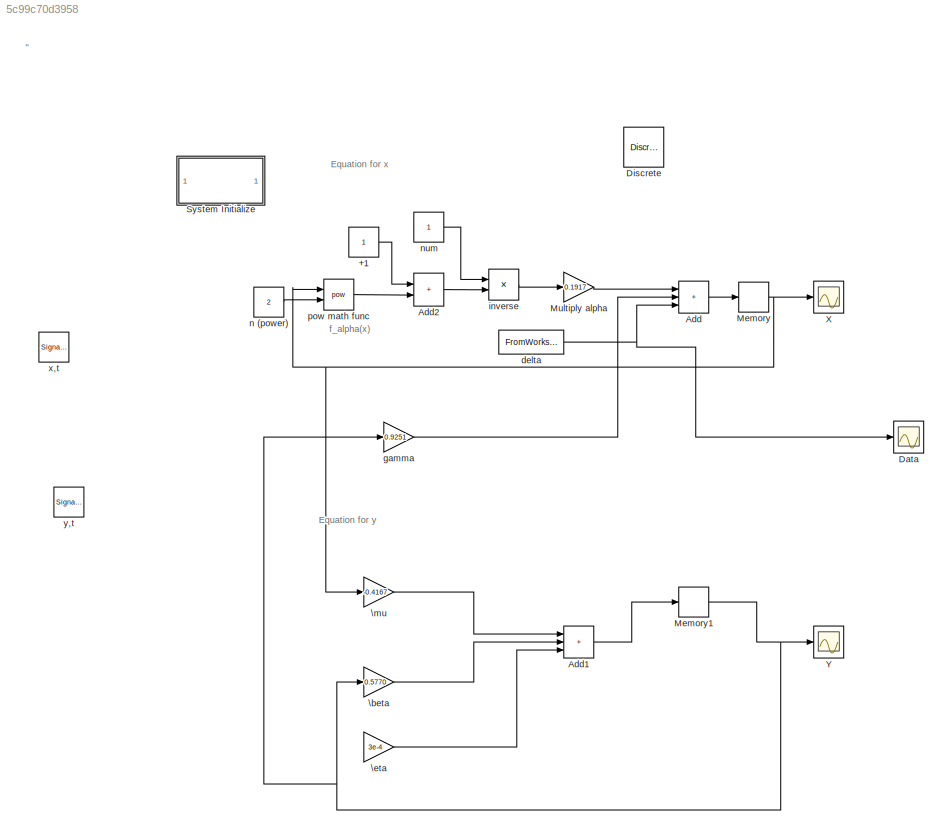
MODEL slx_5c99c70d3958
KIND model
CONFIG AbsTol = auto
CONFIG EnableMultiTasking = off
CONFIG FixedStep = auto
CONFIG MaxStep = auto
CONFIG MinStep = auto
CONFIG RelTol = 1e-3
CONFIG SampleTimeConstraint = Unconstrained
CONFIG SolverName = VariableStepAuto
CONFIG StartTime = 0.0
CONFIG StopTime = 1461
BLOCK [Constant] +1
BLOCK [Sum] Add
  IconShape = rectangular
  Inputs = +++
  Ports = [3, 1]
BLOCK [Sum] Add1
  IconShape = rectangular
  Inputs = +++
  Ports = [3, 1]
BLOCK [Sum] Add2
  IconShape = rectangular
  Ports = [2, 1]
BLOCK [Scope] Data
  Floating = off
  NumInputPorts = 1
  Ports = [1]
  ScopeSpecificationString = Simulink.scopes.TimeScopeBlockCfg('CurrentConfiguration', extmgr.ConfigurationSet(extmgr.Configuration('Core','General UI',true),extmgr.Configuration('Core','Source UI',true),extmgr.Configuration('Sources','WiredSimulink',true,'DataLoggingVariableName','ScopeData1'),extmgr.Configuration('Visuals','Time Domain',true,'SerializedDisplays',{struct('MinYLimReal','-2.42189','MaxYLimReal','10.48599','YLa...<+1401ch>
BLOCK [Reference] Discrete  REF=simulink/Discrete
  Ports = []
  SourceBlock = simulink/Discrete
  SourceProductBaseCode = SL
BLOCK [Memory] Memory
  InitialCondition = 1
BLOCK [Memory] Memory1
  InitialCondition = 1
BLOCK [Gain] Multiply alpha
  Gain = 0.1917
BLOCK [SubSystem] System Initialize
  CopyFcn = cccopyfcn(gcb)
  OpenFcn = ccopenfcn('System Initialize Function')
  Ports = []
  RequestExecContextInheritance = off
BLOCK [Scope] X
  Floating = off
  NumInputPorts = 1
  Ports = [1]
  ScopeSpecificationString = Simulink.scopes.TimeScopeBlockCfg('CurrentConfiguration', extmgr.ConfigurationSet(extmgr.Configuration('Core','General UI',true),extmgr.Configuration('Core','Source UI',true),extmgr.Configuration('Sources','WiredSimulink',true),extmgr.Configuration('Visuals','Time Domain',true,'SerializedDisplays',{struct('MinYLimReal','-1.68854','MaxYLimReal','7.62452','YLabelReal','','MinYLimMag','0.00000','MaxY...<+1359ch>
BLOCK [Scope] Y
  Floating = off
  NumInputPorts = 1
  Ports = [1]
  ScopeSpecificationString = Simulink.scopes.TimeScopeBlockCfg('CurrentConfiguration', extmgr.ConfigurationSet(extmgr.Configuration('Core','General UI',true),extmgr.Configuration('Core','Source UI',true),extmgr.Configuration('Sources','WiredSimulink',true,'DataLoggingVariableName','ScopeData1'),extmgr.Configuration('Visuals','Time Domain',true,'SerializedDisplays',{struct('MinYLimReal','-5.92719','MaxYLimReal','1.76969','YLab...<+1366ch>
BLOCK [Gain] \beta
  Gain = 0.5770
BLOCK [Gain] \eta
  Gain = 3e-4
BLOCK [Gain] \mu
  Gain = -0.4167
BLOCK [FromWorkspace] delta
  OutputAfterFinalValue = Holding final value
  SampleTime = 1
  VariableName = stl_data2
BLOCK [Gain] gamma
  Gain = 0.9251
BLOCK [Product] inverse
  Inputs = */
  Ports = [2, 1]
BLOCK [Constant] n (power)
  Value = 2
BLOCK [Constant] num
BLOCK [Math] pow math func
  Operator = pow
  Ports = [2, 1]
BLOCK [SignalGenerator] x,t
  Ports = [0, 1]
  Units = rad/sec
  WaveForm = random
BLOCK [SignalGenerator] y,t
  Ports = [0, 1]
  Units = rad/sec
  WaveForm = random
ANNOTATION (root): "
ANNOTATION (root): Equation for x
ANNOTATION (root): Equation for y
ANNOTATION (root): f_alpha(x)
LINE +1:1 -> Add2:1
LINE Add1:1 -> Memory1:1
LINE Add2:1 -> inverse:2
LINE Add:1 -> Memory:1
NET Memory1:1 -> Y:1, \beta:1, gamma:1
NET Memory:1 -> X:1, \mu:1, pow math func:1
LINE Multiply alpha:1 -> Add:1
LINE \beta:1 -> Add1:2
LINE \eta:1 -> Add1:3
LINE \mu:1 -> Add1:1
NET delta:1 -> Add:3, Data:1
LINE gamma:1 -> Add:2
LINE inverse:1 -> Multiply alpha:1
LINE n (power):1 -> pow math func:2
LINE num:1 -> inverse:1
LINE pow math func:1 -> Add2:2
note: NET lines group one-source signal fan-out (src -> all destinations, sorted); 1:1 wires keep LINE
